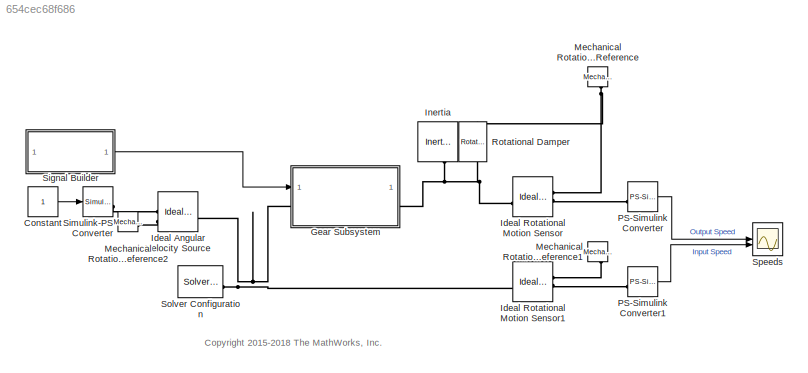
MODEL slx_654cec68f686
KIND model
CONFIG AbsTol = 1e-3
CONFIG EnableMultiTasking = on
CONFIG FixedStep = auto
CONFIG MaxStep = 0.2
CONFIG MinStep = auto
CONFIG RelTol = 1e-3
CONFIG SampleTimeConstraint = Unconstrained
CONFIG SolverName = ode23t
CONFIG StartTime = 0.0
CONFIG StopTime = 30
BLOCK [Constant] Constant
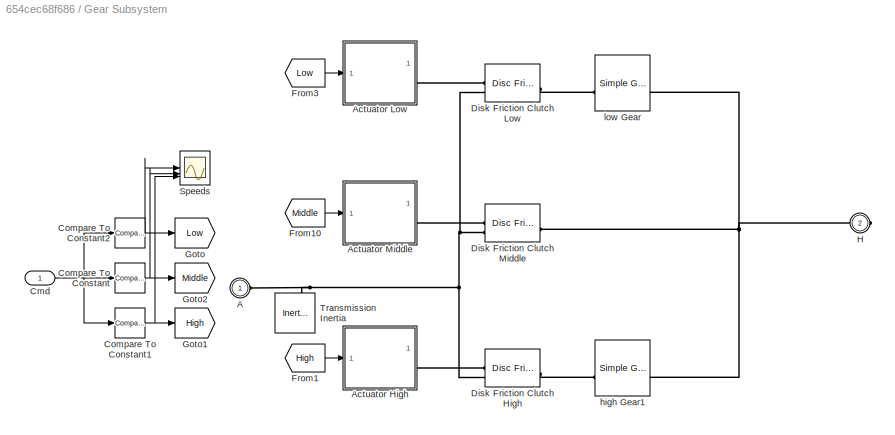
BLOCK [SubSystem] Gear Subsystem
BLOCK [PMIOPort] Gear Subsystem/A
  NameLocation = top
  Side = Left
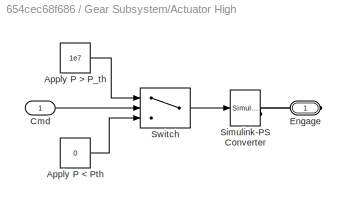
BLOCK [SubSystem] Gear Subsystem/Actuator High
BLOCK [Constant] Gear Subsystem/Actuator High/Apply P < Pth
  Value = 0
BLOCK [Constant] Gear Subsystem/Actuator High/Apply P > P_th
  Value = 1e7
BLOCK [Inport] Gear Subsystem/Actuator High/Cmd
BLOCK [PMIOPort] Gear Subsystem/Actuator High/Engage
  Side = Right
BLOCK [Reference] Gear Subsystem/Actuator High/Simulink-PS Converter  REF=nesl_utility/Simulink-PS
Converter
  SourceBlock = nesl_utility/Simulink-PS\nConverter
  SourceType = Simulink-PS\nConverter
BLOCK [Switch] Gear Subsystem/Actuator High/Switch
  Criteria = u2 > Threshold
  InputSameDT = off
  SaturateOnIntegerOverflow = off
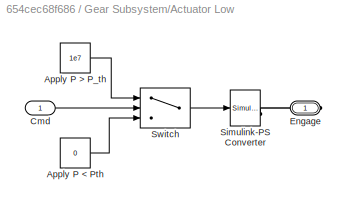
BLOCK [SubSystem] Gear Subsystem/Actuator Low
BLOCK [Constant] Gear Subsystem/Actuator Low/Apply P < Pth
  Value = 0
BLOCK [Constant] Gear Subsystem/Actuator Low/Apply P > P_th
  Value = 1e7
BLOCK [Inport] Gear Subsystem/Actuator Low/Cmd
BLOCK [PMIOPort] Gear Subsystem/Actuator Low/Engage
  Side = Right
BLOCK [Reference] Gear Subsystem/Actuator Low/Simulink-PS Converter  REF=nesl_utility/Simulink-PS
Converter
  SourceBlock = nesl_utility/Simulink-PS\nConverter
  SourceType = Simulink-PS\nConverter
BLOCK [Switch] Gear Subsystem/Actuator Low/Switch
  Criteria = u2 > Threshold
  InputSameDT = off
  SaturateOnIntegerOverflow = off
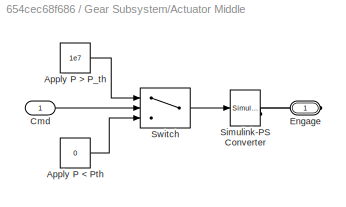
BLOCK [SubSystem] Gear Subsystem/Actuator Middle
BLOCK [Constant] Gear Subsystem/Actuator Middle/Apply P < Pth
  Value = 0
BLOCK [Constant] Gear Subsystem/Actuator Middle/Apply P > P_th
  Value = 1e7
BLOCK [Inport] Gear Subsystem/Actuator Middle/Cmd
BLOCK [PMIOPort] Gear Subsystem/Actuator Middle/Engage
  Side = Right
BLOCK [Reference] Gear Subsystem/Actuator Middle/Simulink-PS Converter  REF=nesl_utility/Simulink-PS
Converter
  SourceBlock = nesl_utility/Simulink-PS\nConverter
  SourceType = Simulink-PS\nConverter
BLOCK [Switch] Gear Subsystem/Actuator Middle/Switch
  Criteria = u2 > Threshold
  InputSameDT = off
  SaturateOnIntegerOverflow = off
BLOCK [Inport] Gear Subsystem/Cmd
BLOCK [Reference] Gear Subsystem/Compare To Constant  REF=simulink/Logic and Bit
Operations/Compare
To Constant
  SourceBlock = simulink/Logic and Bit\nOperations/Compare\nTo Constant
  SourceType = Compare To Constant
BLOCK [Reference] Gear Subsystem/Compare To Constant1  REF=simulink/Logic and Bit
Operations/Compare
To Constant
  SourceBlock = simulink/Logic and Bit\nOperations/Compare\nTo Constant
  SourceType = Compare To Constant
BLOCK [Reference] Gear Subsystem/Compare To Constant2  REF=simulink/Logic and Bit
Operations/Compare
To Constant
  SourceBlock = simulink/Logic and Bit\nOperations/Compare\nTo Constant
  SourceType = Compare To Constant
BLOCK [Reference] Gear Subsystem/Disk Friction Clutch High  REF=sdl_lib/Clutches/Disc Friction Clutch
  SourceBlock = sdl_lib/Clutches/Disc Friction Clutch
  SourceType = Disc Friction Clutch
BLOCK [Reference] Gear Subsystem/Disk Friction Clutch Low  REF=sdl_lib/Clutches/Disc Friction Clutch
  SourceBlock = sdl_lib/Clutches/Disc Friction Clutch
  SourceType = Disc Friction Clutch
BLOCK [Reference] Gear Subsystem/Disk Friction Clutch Middle  REF=sdl_lib/Clutches/Disc Friction Clutch
  SourceBlock = sdl_lib/Clutches/Disc Friction Clutch
  SourceType = Disc Friction Clutch
BLOCK [From] Gear Subsystem/From1
  GotoTag = High
BLOCK [From] Gear Subsystem/From10
  GotoTag = Middle
BLOCK [From] Gear Subsystem/From3
  GotoTag = Low
BLOCK [Goto] Gear Subsystem/Goto
  GotoTag = Low
BLOCK [Goto] Gear Subsystem/Goto1
  GotoTag = High
BLOCK [Goto] Gear Subsystem/Goto2
  GotoTag = Middle
BLOCK [PMIOPort] Gear Subsystem/H
  NameLocation = top
  Port = 2
  Side = Right
BLOCK [Scope] Gear Subsystem/Speeds
  Floating = off
  NumInputPorts = 3
  ScopeSpecificationString = C++SS(StrPVP('Location','[10, 60, 1930, 1158]'),StrPVP('Open','off'),StrPVP('ZoomMode','xonly'),MxPVP('AxesTitles',54,'struct(''axes1'',''%<SignalLabel>'',''axes2'',''%<SignalLabel>'',''axes3'',''%<SignalLabel>'')'),MxPVP('ScopeGraphics',57,'struct(''FigureColor'',''[0.5 0.5 0.5]'',''AxesColor'',''[0 0 0]'',''AxesTickColor'',''[1 1 1]'',''LineColors'',''[1 1 0;1 0 1;0 1 1;1 0 0;0 1 0;0 0 1]'',''Li...<+381ch>
BLOCK [Reference] Gear Subsystem/Transmission Inertia  REF=fl_lib/Mechanical/Rotational Elements/Inertia
  NameLocation = right
  SourceBlock = fl_lib/Mechanical/Rotational Elements/Inertia
  SourceType = Inertia
BLOCK [Reference] Gear Subsystem/high Gear1  REF=sdl_lib/Gears/Simple Gear
  SourceBlock = sdl_lib/Gears/Simple Gear
  SourceType = Simple Gear
BLOCK [Reference] Gear Subsystem/low Gear  REF=sdl_lib/Gears/Simple Gear
  SourceBlock = sdl_lib/Gears/Simple Gear
  SourceType = Simple Gear
BLOCK [Reference] Ideal Angular Velocity Source  REF=fl_lib/Mechanical/Mechanical Sources/Ideal Angular
Velocity Source
  SourceBlock = fl_lib/Mechanical/Mechanical Sources/Ideal Angular\nVelocity Source
  SourceType = Ideal Angular\nVelocity Source
BLOCK [Reference] Ideal Rotational Motion Sensor  REF=fl_lib/Mechanical/Mechanical Sensors/Ideal Rotational
Motion Sensor
  SourceBlock = fl_lib/Mechanical/Mechanical Sensors/Ideal Rotational\nMotion Sensor
  SourceType = Ideal Rotational\nMotion Sensor
BLOCK [Reference] Ideal Rotational Motion Sensor1  REF=fl_lib/Mechanical/Mechanical Sensors/Ideal Rotational
Motion Sensor
  SourceBlock = fl_lib/Mechanical/Mechanical Sensors/Ideal Rotational\nMotion Sensor
  SourceType = Ideal Rotational\nMotion Sensor
BLOCK [Reference] Inertia  REF=fl_lib/Mechanical/Rotational Elements/Inertia
  NameLocation = left
  SourceBlock = fl_lib/Mechanical/Rotational Elements/Inertia
  SourceType = Inertia
BLOCK [Reference] Mechanical Rotational Reference  REF=fl_lib/Mechanical/Rotational Elements/Mechanical
Rotational Reference
  NameLocation = left
  SourceBlock = fl_lib/Mechanical/Rotational Elements/Mechanical\nRotational Reference
  SourceType = Mechanical\nRotational Reference
BLOCK [Reference] Mechanical Rotational Reference1  REF=fl_lib/Mechanical/Rotational Elements/Mechanical
Rotational Reference
  NameLocation = left
  SourceBlock = fl_lib/Mechanical/Rotational Elements/Mechanical\nRotational Reference
  SourceType = Mechanical\nRotational Reference
BLOCK [Reference] Mechanical Rotational Reference2  REF=fl_lib/Mechanical/Rotational Elements/Mechanical
Rotational Reference
  SourceBlock = fl_lib/Mechanical/Rotational Elements/Mechanical\nRotational Reference
  SourceType = Mechanical\nRotational Reference
BLOCK [Reference] PS-Simulink Converter  REF=nesl_utility/PS-Simulink
Converter
  SourceBlock = nesl_utility/PS-Simulink\nConverter
  SourceType = PS-Simulink\nConverter
BLOCK [Reference] PS-Simulink Converter1  REF=nesl_utility/PS-Simulink
Converter
  SourceBlock = nesl_utility/PS-Simulink\nConverter
  SourceType = PS-Simulink\nConverter
BLOCK [Reference] Rotational Damper  REF=fl_lib/Mechanical/Rotational Elements/Rotational Damper
  NameLocation = right
  SourceBlock = fl_lib/Mechanical/Rotational Elements/Rotational Damper
  SourceType = Rotational Damper
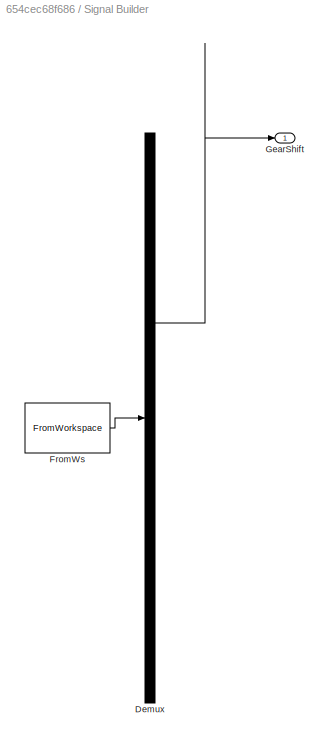
BLOCK [SubSystem] Signal Builder
  ClipboardFcn = sigbuilder_block('clipboard');
  CloseFcn = sigbuilder_block('close');
  ContinueFcn = sigbuilder_block('continue');
  CopyFcn = sigbuilder_block('copy');
  DeleteFcn = sigbuilder_block('delete');
  LoadFcn = sigbuilder_block('load');
  MaskHideContents = on
  ModelCloseFcn = sigbuilder_block('modelClose');
  NameChangeFcn = sigbuilder_block('namechange');
  NameLocation = top
  OpenFcn = sigbuilder_block('open',[306 225.75 549.75 399.25 ]);
  PauseFcn = sigbuilder_block('pause');
  PreSaveFcn = sigbuilder_block('preSave');
  StartFcn = sigbuilder_block('start');
  StopFcn = sigbuilder_block('stop');
  Tag = STV Subsys
BLOCK [Demux] Signal Builder/Demux
  DisplayOption = none
  Outputs = 1
  Tag = STV Demux
BLOCK [FromWorkspace] Signal Builder/FromWs
  Tag = STV FromWs
  VariableName = tuvar
BLOCK [Outport] Signal Builder/GearShift
  Tag = STV Outport
  VectorParamsAs1DForOutWhenUnconnected = off
BLOCK [Reference] Simulink-PS Converter  REF=nesl_utility/Simulink-PS
Converter
  SourceBlock = nesl_utility/Simulink-PS\nConverter
  SourceType = Simulink-PS\nConverter
BLOCK [Reference] Solver Configuration  REF=nesl_utility/Solver
Configuration
  SourceBlock = nesl_utility/Solver\nConfiguration
  SourceType = Solver\nConfiguration
BLOCK [Scope] Speeds
  Floating = off
  NumInputPorts = 2
  ScopeSpecificationString = Simulink.scopes.TimeScopeBlockCfg('CurrentConfiguration', extmgr.ConfigurationSet(extmgr.Configuration('Core','General UI',true),extmgr.Configuration('Core','Source UI',true),extmgr.Configuration('Sources','WiredSimulink',true,'DataLoggingSaveFormat','StructureWithTime','DataLoggingDecimation','1','DataLoggingDecimateData',true),extmgr.Configuration('Visuals','Time Domain',true,'SerializedDisplays...<+2279ch>
ANNOTATION (root): <copyright redacted>
LINE Constant:1 -> Simulink-PS Converter:1
LINE Gear Subsystem/Actuator High/Apply P < Pth:1 -> Gear Subsystem/Actuator High/Switch:3
LINE Gear Subsystem/Actuator High/Apply P > P_th:1 -> Gear Subsystem/Actuator High/Switch:1
LINE Gear Subsystem/Actuator High/Cmd:1 -> Gear Subsystem/Actuator High/Switch:2
LINE Gear Subsystem/Actuator High/Switch:1 -> Gear Subsystem/Actuator High/Simulink-PS Converter:1
LINE Gear Subsystem/Actuator Low/Apply P < Pth:1 -> Gear Subsystem/Actuator Low/Switch:3
LINE Gear Subsystem/Actuator Low/Apply P > P_th:1 -> Gear Subsystem/Actuator Low/Switch:1
LINE Gear Subsystem/Actuator Low/Cmd:1 -> Gear Subsystem/Actuator Low/Switch:2
LINE Gear Subsystem/Actuator Low/Switch:1 -> Gear Subsystem/Actuator Low/Simulink-PS Converter:1
LINE Gear Subsystem/Actuator Middle/Apply P < Pth:1 -> Gear Subsystem/Actuator Middle/Switch:3
LINE Gear Subsystem/Actuator Middle/Apply P > P_th:1 -> Gear Subsystem/Actuator Middle/Switch:1
LINE Gear Subsystem/Actuator Middle/Cmd:1 -> Gear Subsystem/Actuator Middle/Switch:2
LINE Gear Subsystem/Actuator Middle/Switch:1 -> Gear Subsystem/Actuator Middle/Simulink-PS Converter:1
NET Gear Subsystem/Cmd:1 -> Gear Subsystem/Compare To Constant1:1, Gear Subsystem/Compare To Constant2:1, Gear Subsystem/Compare To Constant:1
NET Gear Subsystem/Compare To Constant1:1 -> Gear Subsystem/Goto1:1, Gear Subsystem/Speeds:3
NET Gear Subsystem/Compare To Constant2:1 -> Gear Subsystem/Goto:1, Gear Subsystem/Speeds:1
NET Gear Subsystem/Compare To Constant:1 -> Gear Subsystem/Goto2:1, Gear Subsystem/Speeds:2
LINE Gear Subsystem/From10:1 -> Gear Subsystem/Actuator Middle:1
LINE Gear Subsystem/From1:1 -> Gear Subsystem/Actuator High:1
LINE Gear Subsystem/From3:1 -> Gear Subsystem/Actuator Low:1
LINE PS-Simulink Converter1:1 -> Speeds:2
LINE PS-Simulink Converter:1 -> Speeds:1
LINE Signal Builder:1 -> Gear Subsystem:1
PNET net1: Gear Subsystem/A:RConn1 -- Gear Subsystem/Disk Friction Clutch High:LConn2 -- Gear Subsystem/Disk Friction Clutch Low:LConn2 -- Gear Subsystem/Disk Friction Clutch Middle:LConn2 -- Gear Subsystem/Transmission Inertia:LConn1
PLINE Gear Subsystem/Actuator High/Engage:RConn1 -- Gear Subsystem/Actuator High/Simulink-PS Converter:RConn1
PLINE Gear Subsystem/Actuator High:RConn1 -- Gear Subsystem/Disk Friction Clutch High:LConn1
PLINE Gear Subsystem/Actuator Low/Engage:RConn1 -- Gear Subsystem/Actuator Low/Simulink-PS Converter:RConn1
PLINE Gear Subsystem/Actuator Low:RConn1 -- Gear Subsystem/Disk Friction Clutch Low:LConn1
PLINE Gear Subsystem/Actuator Middle/Engage:RConn1 -- Gear Subsystem/Actuator Middle/Simulink-PS Converter:RConn1
PLINE Gear Subsystem/Actuator Middle:RConn1 -- Gear Subsystem/Disk Friction Clutch Middle:LConn1
PLINE Gear Subsystem/Disk Friction Clutch High:RConn1 -- Gear Subsystem/high Gear1:LConn1
PLINE Gear Subsystem/Disk Friction Clutch Low:RConn1 -- Gear Subsystem/low Gear:LConn1
PNET net2: Gear Subsystem/Disk Friction Clutch Middle:RConn1 -- Gear Subsystem/H:RConn1 -- Gear Subsystem/high Gear1:RConn1 -- Gear Subsystem/low Gear:RConn1
PNET net3: Gear Subsystem:LConn1 -- Ideal Angular Velocity Source:LConn1 -- Ideal Rotational Motion Sensor1:LConn1 -- Solver Configuration:RConn1
PNET net4: Gear Subsystem:RConn1 -- Ideal Rotational Motion Sensor:LConn1 -- Inertia:LConn1 -- Rotational Damper:LConn1
PLINE Ideal Angular Velocity Source:RConn1 -- Simulink-PS Converter:RConn1
PLINE Ideal Angular Velocity Source:RConn2 -- Mechanical Rotational Reference2:LConn1
PLINE Ideal Rotational Motion Sensor1:RConn1 -- Mechanical Rotational Reference1:LConn1
PLINE Ideal Rotational Motion Sensor1:RConn2 -- PS-Simulink Converter1:LConn1
PNET net5: Ideal Rotational Motion Sensor:RConn1 -- Mechanical Rotational Reference:LConn1 -- Rotational Damper:RConn1
PLINE Ideal Rotational Motion Sensor:RConn2 -- PS-Simulink Converter:LConn1
note: NET lines group one-source signal fan-out (src -> all destinations, sorted); 1:1 wires keep LINE; PNET lines group multi-terminal physical nets as a canonical sorted terminal list (undirected conserving connections); 2-terminal nets keep the pairwise PLINE form
